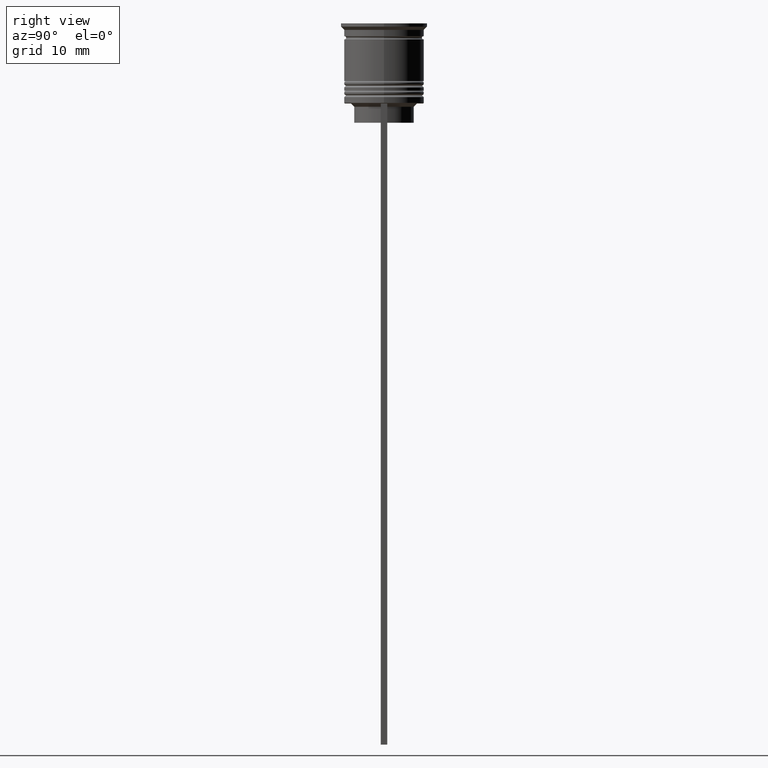
[diagram: clean part render]
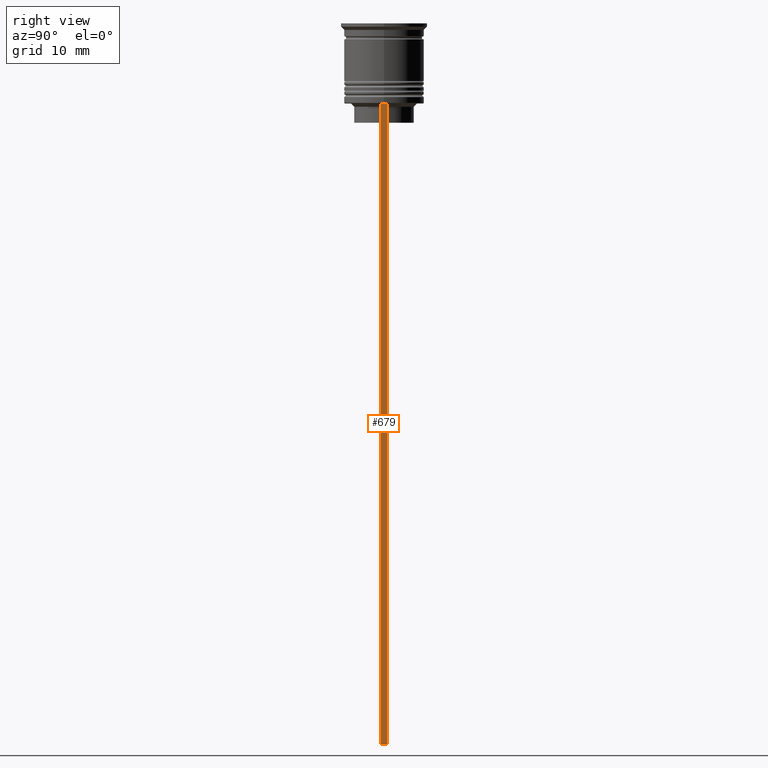
[diagram: same view with one face highlighted and labeled with its STEP entity id]
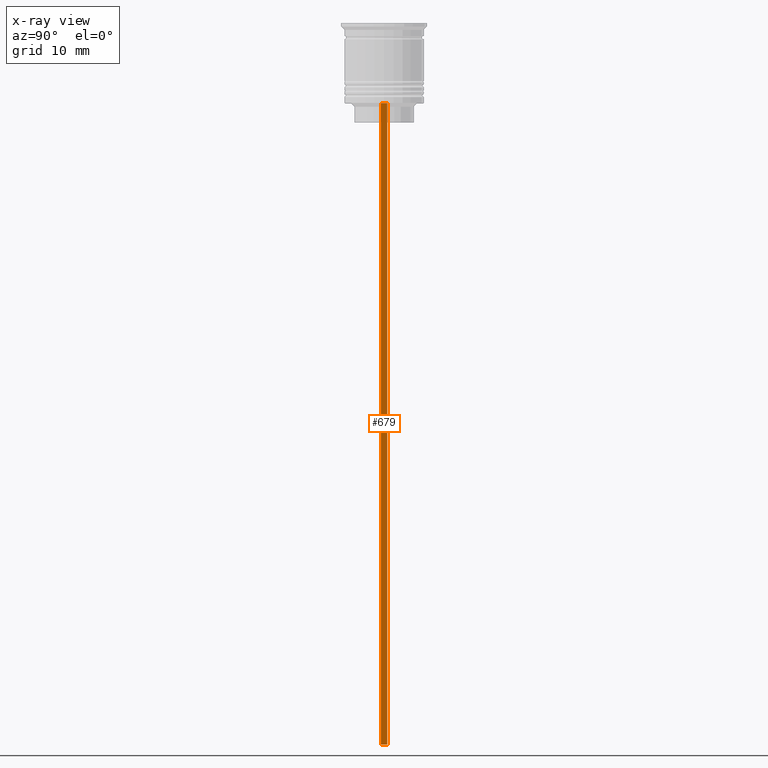
[diagram: x-ray of the same camera — body ghosted, the highlighted face saturated]
A machine part, right view. The second image highlights one B-rep face of the part: STEP entity #679.
The next image is the same camera in x-ray: the body ghosted, the highlighted face saturated — about 0% of this face is hidden behind the body in this view.
In plain terms, the highlighted planar face has unit normal (-1, 0, 0).
Its self-contained STEP definition (entity closure, byte-faithful):
#32 = DIRECTION ( 'NONE',  ( 0.000000000000000000, 0.000000000000000000, 1.000000000000000000 ) ) ;
#37 = ORIENTED_EDGE ( 'NONE', *, *, #1283, .T. ) ;
#78 = VECTOR ( 'NONE', #1263, 1000.000000000000000 ) ;
#151 = VECTOR ( 'NONE', #1251, 1000.000000000000000 ) ;
#158 = CARTESIAN_POINT ( 'NONE',  ( 6.000000000000016875, -0.5000000000000017764, -0.4584054212077061097 ) ) ;
#173 = VERTEX_POINT ( 'NONE', #1009 ) ;
#211 = FACE_OUTER_BOUND ( 'NONE', #1149, .T. ) ;
#343 = VECTOR ( 'NONE', #1863, 1000.000000000000000 ) ;
#351 = VECTOR ( 'NONE', #962, 1000.000000000000000 ) ;
#426 = CARTESIAN_POINT ( 'NONE',  ( 6.000000000000016875, 0.4999999999999982792, -112.5000000000000000 ) ) ;
#529 = ORIENTED_EDGE ( 'NONE', *, *, #707, .F. ) ;
#530 = CARTESIAN_POINT ( 'NONE',  ( 6.000000000000016875, -0.5000000000000017764, -112.5000000000000000 ) ) ;
#651 = VERTEX_POINT ( 'NONE', #748 ) ;
#679 = ADVANCED_FACE ( 'NONE', ( #211 ), #1670, .F. ) ;
#707 = EDGE_CURVE ( 'NONE', #1268, #2060, #2068, .T. ) ;
#748 = CARTESIAN_POINT ( 'NONE',  ( 6.000000000000016875, -0.5000000000000017764, -112.5000000000000000 ) ) ;
#892 = CARTESIAN_POINT ( 'NONE',  ( 6.000000000000016875, 0.4999999999999982792, -12.50000000000000000 ) ) ;
#962 = DIRECTION ( 'NONE',  ( 0.000000000000000000, 0.000000000000000000, -1.000000000000000000 ) ) ;
#1009 = CARTESIAN_POINT ( 'NONE',  ( 6.000000000000016875, -0.5000000000000017764, -12.50000000000000000 ) ) ;
#1030 = ORIENTED_EDGE ( 'NONE', *, *, #1458, .T. ) ;
#1149 = EDGE_LOOP ( 'NONE', ( #529, #1387, #37, #1030 ) ) ;
#1251 = DIRECTION ( 'NONE',  ( 0.000000000000000000, -1.000000000000000000, 0.000000000000000000 ) ) ;
#1263 = DIRECTION ( 'NONE',  ( 0.000000000000000000, 1.000000000000000000, 0.000000000000000000 ) ) ;
#1268 = VERTEX_POINT ( 'NONE', #892 ) ;
#1275 = LINE ( 'NONE', #1621, #151 ) ;
#1283 = EDGE_CURVE ( 'NONE', #173, #651, #1794, .T. ) ;
#1313 = CARTESIAN_POINT ( 'NONE',  ( 6.000000000000016875, -0.5000000000000017764, -0.4584054212077061097 ) ) ;
#1367 = EDGE_CURVE ( 'NONE', #1268, #173, #1275, .T. ) ;
#1387 = ORIENTED_EDGE ( 'NONE', *, *, #1367, .T. ) ;
#1458 = EDGE_CURVE ( 'NONE', #651, #2060, #2150, .T. ) ;
#1465 = DIRECTION ( 'NONE',  ( -1.000000000000000000, 0.000000000000000000, 0.000000000000000000 ) ) ;
#1621 = CARTESIAN_POINT ( 'NONE',  ( 6.000000000000016875, -0.5000000000000017764, -12.50000000000000000 ) ) ;
#1670 = PLANE ( 'NONE',  #1682 ) ;
#1682 = AXIS2_PLACEMENT_3D ( 'NONE', #1313, #1465, #32 ) ;
#1794 = LINE ( 'NONE', #158, #343 ) ;
#1863 = DIRECTION ( 'NONE',  ( 0.000000000000000000, 0.000000000000000000, -1.000000000000000000 ) ) ;
#1866 = CARTESIAN_POINT ( 'NONE',  ( 6.000000000000016875, 0.4999999999999982792, -0.4584054212077061097 ) ) ;
#2060 = VERTEX_POINT ( 'NONE', #426 ) ;
#2068 = LINE ( 'NONE', #1866, #351 ) ;
#2150 = LINE ( 'NONE', #530, #78 ) ;